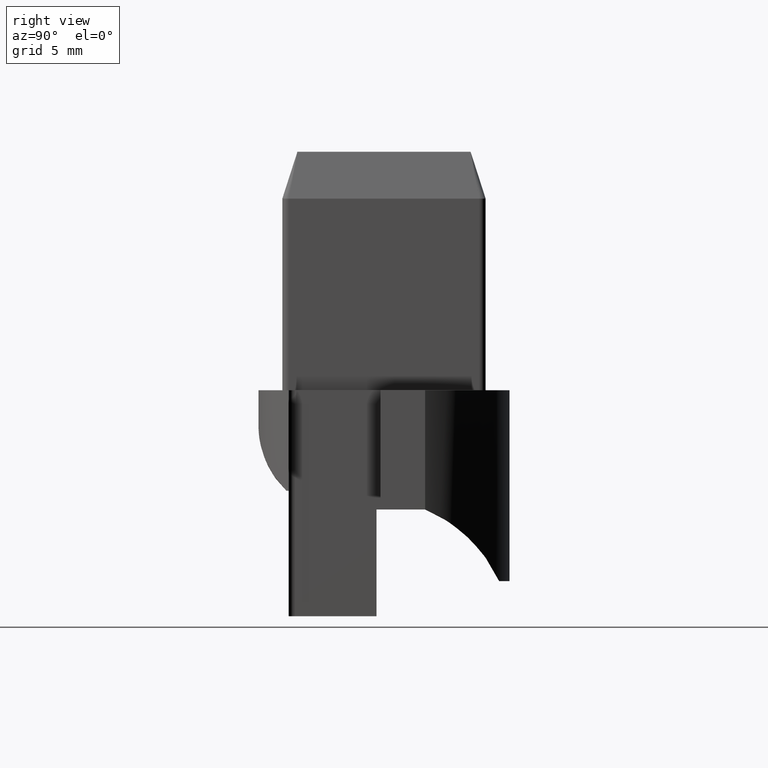
[diagram: clean part render]
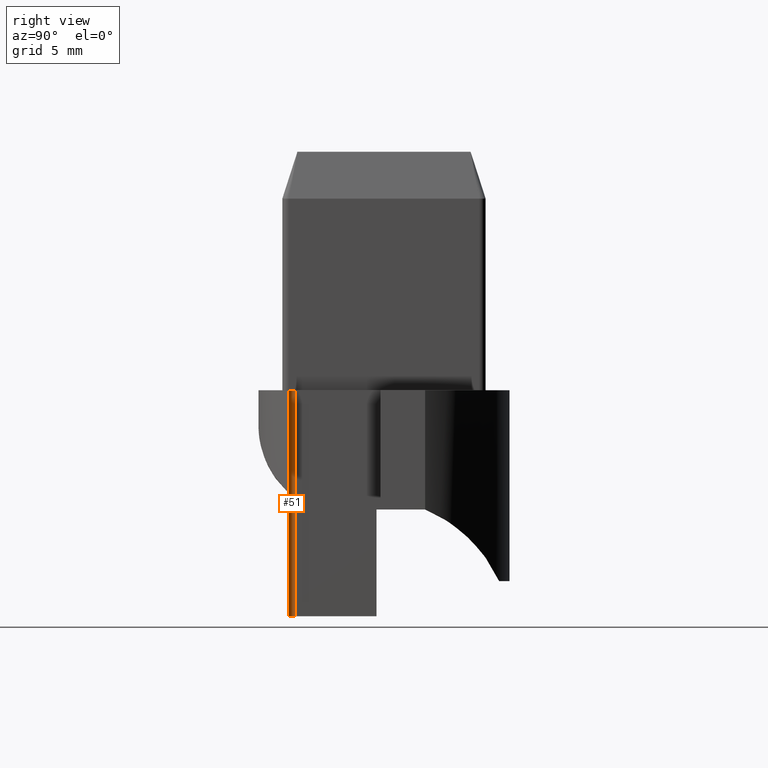
[diagram: same view with one face highlighted and labeled with its STEP entity id]
A machine part, right view. The second image highlights one B-rep face of the part: STEP entity #51.
In plain terms, the highlighted cylindrical surface (edge-blend (fillet) strip) has radius 0.5 mm, axis along (-0, -0, -1).
Its self-contained STEP definition (entity closure, byte-faithful):
#2=CARTESIAN_POINT('',(10.500000000282853,-3.100000516191120,-12.000156675670837));
#3=DIRECTION('',(-7.785792E-025,-0.000000025809570,-1.000000000000000));
#4=DIRECTION('',(0.0,-1.000000000000000,0.000000025809570));
#5=AXIS2_PLACEMENT_3D('',#2,#3,#4);
#6=CYLINDRICAL_SURFACE('',#5,0.500000000000000);
#7=CARTESIAN_POINT('',(10.500000000282853,-3.600000206472238,0.000000092914547));
#8=VERTEX_POINT('',#7);
#9=CARTESIAN_POINT('',(10.500000000282853,-3.599999948376543,10.000000035777589));
#10=VERTEX_POINT('',#9);
#11=CARTESIAN_POINT('',(10.500000000282853,-3.600000206472238,0.000000092914547));
#12=DIRECTION('',(0.0,0.000000025809570,1.000000000000000));
#13=VECTOR('',#12,9.999999942863045);
#14=LINE('',#11,#13);
#15=EDGE_CURVE('',#8,#10,#14,.T.);
#16=ORIENTED_EDGE('',*,*,#15,.F.);
#17=CARTESIAN_POINT('',(10.000000000282853,-3.100000206472234,0.000000080009613));
#18=VERTEX_POINT('',#17);
#19=CARTESIAN_POINT('',(10.500000000282853,-3.100000206472239,0.000000080009613));
#20=DIRECTION('',(7.785792E-025,0.000000025809570,1.000000000000000));
#21=DIRECTION('',(0.0,-1.000000000000000,0.000000025809570));
#22=AXIS2_PLACEMENT_3D('',#19,#20,#21);
#23=CIRCLE('',#22,0.500000000000000);
#24=EDGE_CURVE('',#18,#8,#23,.T.);
#25=ORIENTED_EDGE('',*,*,#24,.F.);
#26=CARTESIAN_POINT('',(10.000000000282853,-3.099999741904024,17.999843324329163));
#27=VERTEX_POINT('',#26);
#28=CARTESIAN_POINT('',(10.000000000282853,-3.100000206472234,0.000000080009658));
#29=DIRECTION('',(0.0,0.000000025809570,1.000000000000000));
#30=VECTOR('',#29,17.999843244319507);
#31=LINE('',#28,#30);
#32=EDGE_CURVE('',#18,#27,#31,.T.);
#33=ORIENTED_EDGE('',*,*,#32,.T.);
#34=CARTESIAN_POINT('',(10.500000000282853,-3.599999741904030,17.999843337233983));
#35=VERTEX_POINT('',#34);
#36=CARTESIAN_POINT('',(10.500000000282853,-3.099999741904030,17.999843324329166));
#37=DIRECTION('',(-7.785792E-025,-0.000000025809570,-1.000000000000000));
#38=DIRECTION('',(0.0,-1.000000000000000,0.000000025809570));
#39=AXIS2_PLACEMENT_3D('',#36,#37,#38);
#40=CIRCLE('',#39,0.500000000000000);
#41=EDGE_CURVE('',#35,#27,#40,.T.);
#42=ORIENTED_EDGE('',*,*,#41,.F.);
#43=CARTESIAN_POINT('',(10.500000000282853,-3.599999948376543,10.000000035777642));
#44=DIRECTION('',(0.0,0.000000025809570,1.000000000000000));
#45=VECTOR('',#44,7.999843301456333);
#46=LINE('',#43,#45);
#47=EDGE_CURVE('',#10,#35,#46,.T.);
#48=ORIENTED_EDGE('',*,*,#47,.F.);
#49=EDGE_LOOP('',(#16,#25,#33,#42,#48));
#50=FACE_OUTER_BOUND('',#49,.T.);
#51=ADVANCED_FACE('',(#50),#6,.F.);